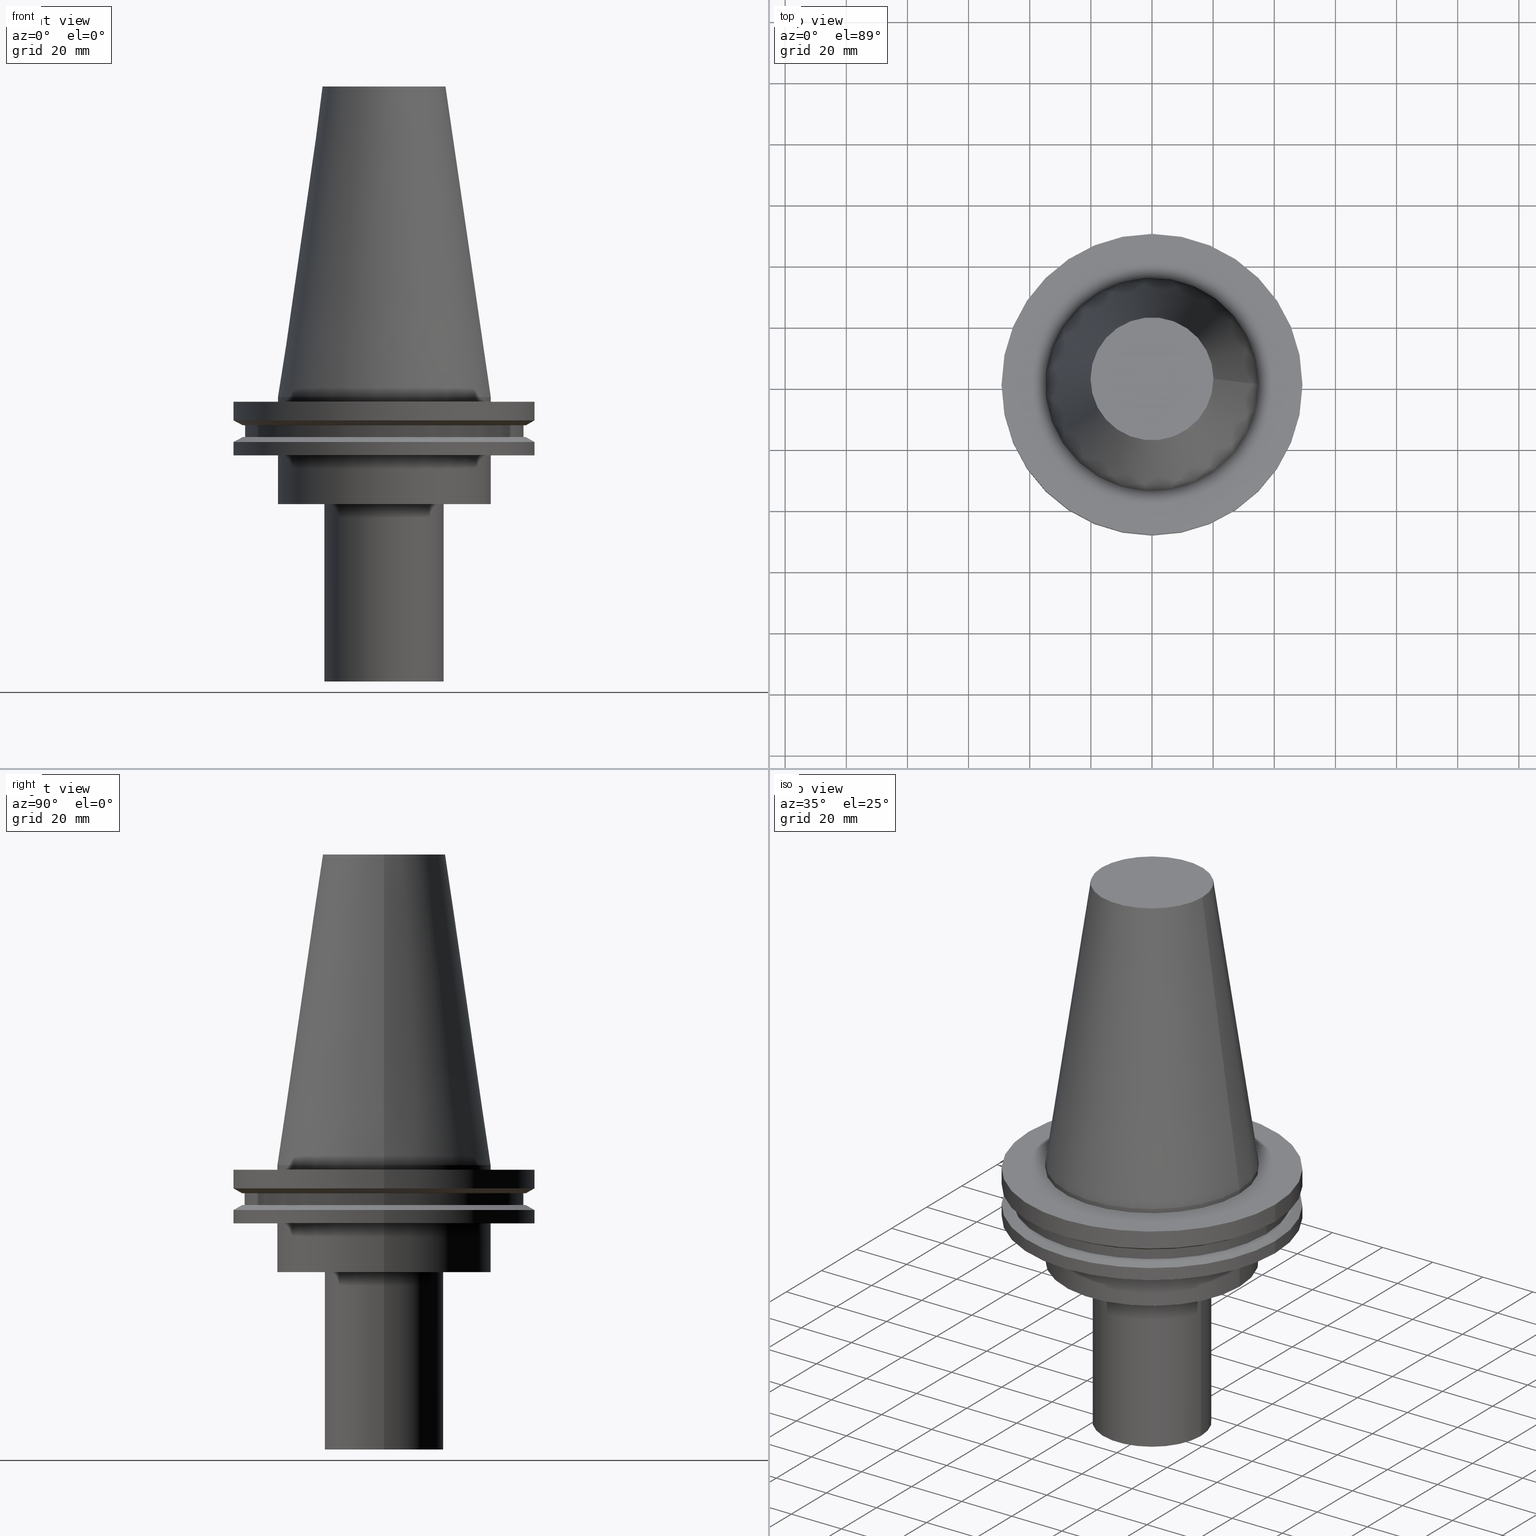
[diagram: canonical four-view strip — front | top / right | iso, engineering-drawing reading convention]
A machine part, canonical four-view strip (front | top / right | iso — engineering-drawing reading convention). The complete STEP part file that produces these views, byte-faithful:
ISO-10303-21;
HEADER;
FILE_DESCRIPTION (( 'STEP AP203' ),
    '1' );
FILE_NAME ('11.368.642.stp',
    '2022-03-09T15:20:18',
    ( '' ),
    ( '' ),
    'SwSTEP 2.0',
    'SolidWorks 2021',
    '' );
FILE_SCHEMA (( 'CONFIG_CONTROL_DESIGN' ));
ENDSEC;

DATA;
#1 = CIRCLE ( 'NONE', #202, 34.92499999999999005 ) ;
#2 = LOCAL_TIME ( 9, 20, 18.00000000000000000, #97 ) ;
#3 = ORIENTED_EDGE ( 'NONE', *, *, #93, .F. ) ;
#4 = AXIS2_PLACEMENT_3D ( 'NONE', #50, #349, #318 ) ;
#5 = SECURITY_CLASSIFICATION_LEVEL ( 'unclassified' ) ;
#6 = EDGE_LOOP ( 'NONE', ( #150 ) ) ;
#7 = EDGE_CURVE ( 'NONE', #29, #29, #290, .T. ) ;
#8 = CARTESIAN_POINT ( 'NONE',  ( 0.000000000000000000, 0.000000000000000000, 0.000000000000000000 ) ) ;
#9 = DATE_AND_TIME ( #282, #2 ) ;
#10 = EDGE_LOOP ( 'NONE', ( #303 ) ) ;
#11 = CC_DESIGN_APPROVAL ( #53, ( #28 ) ) ;
#12 = DATE_AND_TIME ( #249, #204 ) ;
#13 = DIRECTION ( 'NONE',  ( 1.000000000000000000, 0.000000000000000000, 0.000000000000000000 ) ) ;
#14 = DIRECTION ( 'NONE',  ( 1.000000000000000000, 0.000000000000000000, 0.000000000000000000 ) ) ;
#15 = EDGE_CURVE ( 'NONE', #117, #117, #210, .T. ) ;
#16 = CARTESIAN_POINT ( 'NONE',  ( 0.000000000000000000, 20.10819343178871321, 101.5999999999999943 ) ) ;
#17 = CARTESIAN_POINT ( 'NONE',  ( 0.000000000000000000, 0.000000000000000000, 101.5999999999999943 ) ) ;
#18 = DIRECTION ( 'NONE',  ( 1.000000000000000000, 0.000000000000000000, 0.000000000000000000 ) ) ;
#19 = CARTESIAN_POINT ( 'NONE',  ( 0.000000000000000000, 0.000000000000000000, 101.5999999999999943 ) ) ;
#20 = AXIS2_PLACEMENT_3D ( 'NONE', #108, #109, #76 ) ;
#21 = AXIS2_PLACEMENT_3D ( 'NONE', #16, #165, #285 ) ;
#22 = DIRECTION ( 'NONE',  ( 1.000000000000000000, 0.000000000000000000, 0.000000000000000000 ) ) ;
#23 = VERTEX_POINT ( 'NONE', #114 ) ;
#24 = CC_DESIGN_PERSON_AND_ORGANIZATION_ASSIGNMENT ( #280, #276, ( #45 ) ) ;
#25 = EDGE_LOOP ( 'NONE', ( #271 ) ) ;
#26 = FACE_OUTER_BOUND ( 'NONE', #27, .T. ) ;
#27 = EDGE_LOOP ( 'NONE', ( #364 ) ) ;
#28 = SECURITY_CLASSIFICATION ( '', '', #5 ) ;
#29 = VERTEX_POINT ( 'NONE', #394 ) ;
#30 = ORIENTED_EDGE ( 'NONE', *, *, #359, .F. ) ;
#31 = CARTESIAN_POINT ( 'NONE',  ( 0.000000000000000000, 45.64500000000000313, -13.05499999999999794 ) ) ;
#32 =( NAMED_UNIT ( * ) PLANE_ANGLE_UNIT ( ) SI_UNIT ( $, .RADIAN. ) );
#33 = ORIENTED_EDGE ( 'NONE', *, *, #316, .T. ) ;
#34 = APPLICATION_CONTEXT ( 'configuration controlled 3d designs of mechanical parts and assemblies' ) ;
#35 = AXIS2_PLACEMENT_3D ( 'NONE', #72, #191, #130 ) ;
#36 = DIRECTION ( 'NONE',  ( 0.000000000000000000, 0.000000000000000000, 1.000000000000000000 ) ) ;
#37 = AXIS2_PLACEMENT_3D ( 'NONE', #198, #47, #320 ) ;
#38 = CARTESIAN_POINT ( 'NONE',  ( 0.000000000000000000, 0.000000000000000000, -1.499999999999987566 ) ) ;
#39 = FACE_BOUND ( 'NONE', #60, .T. ) ;
#40 = CC_DESIGN_PERSON_AND_ORGANIZATION_ASSIGNMENT ( #366, #310, ( #267 ) ) ;
#41 = APPROVAL_DATE_TIME ( #246, #175 ) ;
#42 = DIRECTION ( 'NONE',  ( 0.000000000000000000, -0.000000000000000000, 1.000000000000000000 ) ) ;
#43 = COORDINATED_UNIVERSAL_TIME_OFFSET ( 6, 0, .BEHIND. ) ;
#44 = CARTESIAN_POINT ( 'NONE',  ( 0.000000000000000000, 34.92499999999999716, -35.00000000000000000 ) ) ;
#45 = PRODUCT_DEFINITION_FORMATION_WITH_SPECIFIED_SOURCE ( 'ANY', '', #267, .NOT_KNOWN. ) ;
#46 = DIRECTION ( 'NONE',  ( 0.000000000000000000, -0.000000000000000000, 1.000000000000000000 ) ) ;
#47 = DIRECTION ( 'NONE',  ( 0.000000000000000000, 0.000000000000000000, -1.000000000000000000 ) ) ;
#48 = DIRECTION ( 'NONE',  ( 1.000000000000000000, 0.000000000000000000, 0.000000000000000000 ) ) ;
#49 = AXIS2_PLACEMENT_3D ( 'NONE', #186, #369, #152 ) ;
#50 = CARTESIAN_POINT ( 'NONE',  ( 0.000000000000000000, 0.000000000000000000, 0.000000000000000000 ) ) ;
#51 = CYLINDRICAL_SURFACE ( 'NONE', #223, 34.92499999999999005 ) ;
#52 = FACE_OUTER_BOUND ( 'NONE', #87, .T. ) ;
#53 = APPROVAL ( #129, 'UNSPECIFIED' ) ;
#54 = AXIS2_PLACEMENT_3D ( 'NONE', #81, #381, #386 ) ;
#55 = ORIENTED_EDGE ( 'NONE', *, *, #15, .F. ) ;
#56 = FACE_OUTER_BOUND ( 'NONE', #336, .T. ) ;
#57 = DIRECTION ( 'NONE',  ( 1.000000000000000000, 0.000000000000000000, 0.000000000000000000 ) ) ;
#58 = EDGE_LOOP ( 'NONE', ( #33 ) ) ;
#59 = DIRECTION ( 'NONE',  ( 1.000000000000000000, 0.000000000000000000, 0.000000000000000000 ) ) ;
#60 = EDGE_LOOP ( 'NONE', ( #269 ) ) ;
#61 = CARTESIAN_POINT ( 'NONE',  ( 46.43919780457007818, 0.000000000000000000, -13.05499999999999794 ) ) ;
#62 = ORIENTED_EDGE ( 'NONE', *, *, #316, .F. ) ;
#63 = ADVANCED_FACE ( 'NONE', ( #376, #250 ), #217, .T. ) ;
#64 = APPROVAL_STATUS ( 'not_yet_approved' ) ;
#65 = DIRECTION ( 'NONE',  ( -0.000000000000000000, -0.000000000000000000, 1.000000000000000000 ) ) ;
#66 = APPROVAL ( #64, 'UNSPECIFIED' ) ;
#67 = APPROVAL_PERSON_ORGANIZATION ( #213, #53, #251 ) ;
#68 = FACE_OUTER_BOUND ( 'NONE', #233, .T. ) ;
#69 = PERSON_AND_ORGANIZATION ( #182, #275 ) ;
#70 = DIRECTION ( 'NONE',  ( 1.000000000000000000, 0.000000000000000000, 0.000000000000000000 ) ) ;
#71 = DIRECTION ( 'NONE',  ( 1.000000000000000000, 0.000000000000000000, 0.000000000000000000 ) ) ;
#72 = CARTESIAN_POINT ( 'NONE',  ( 0.000000000000000000, 0.000000000000000000, 0.000000000000000000 ) ) ;
#73 = APPROVAL_DATE_TIME ( #345, #53 ) ;
#74 = DIRECTION ( 'NONE',  ( -0.000000000000000000, -0.000000000000000000, 1.000000000000000000 ) ) ;
#75 = AXIS2_PLACEMENT_3D ( 'NONE', #136, #106, #382 ) ;
#76 = DIRECTION ( 'NONE',  ( 1.000000000000000000, 0.000000000000000000, 0.000000000000000000 ) ) ;
#77 = CARTESIAN_POINT ( 'NONE',  ( 0.000000000000000000, 0.000000000000000000, 101.5999999999999943 ) ) ;
#78 = FACE_BOUND ( 'NONE', #306, .T. ) ;
#79 = AXIS2_PLACEMENT_3D ( 'NONE', #195, #141, #377 ) ;
#80 = FACE_BOUND ( 'NONE', #25, .T. ) ;
#81 = CARTESIAN_POINT ( 'NONE',  ( 0.000000000000000000, 46.43919780457007818, -9.204999999999998295 ) ) ;
#82 = ADVANCED_FACE ( 'NONE', ( #39, #244 ), #96, .F. ) ;
#83 =( NAMED_UNIT ( * ) SI_UNIT ( $, .STERADIAN. ) SOLID_ANGLE_UNIT ( ) );
#84 = LOCAL_TIME ( 9, 20, 18.00000000000000000, #43 ) ;
#85 = CARTESIAN_POINT ( 'NONE',  ( 34.92499999999999005, 0.000000000000000000, -1.499999999999987566 ) ) ;
#86 = VERTEX_POINT ( 'NONE', #211 ) ;
#87 = EDGE_LOOP ( 'NONE', ( #92 ) ) ;
#88 = VERTEX_POINT ( 'NONE', #85 ) ;
#89 = AXIS2_PLACEMENT_3D ( 'NONE', #292, #228, #18 ) ;
#90 =( GEOMETRIC_REPRESENTATION_CONTEXT ( 3 ) GLOBAL_UNCERTAINTY_ASSIGNED_CONTEXT ( ( #259 ) ) GLOBAL_UNIT_ASSIGNED_CONTEXT ( ( #333, #32, #83 ) ) REPRESENTATION_CONTEXT ( 'NONE', 'WORKASPACE' ) );
#91 = EDGE_LOOP ( 'NONE', ( #203 ) ) ;
#92 = ORIENTED_EDGE ( 'NONE', *, *, #15, .T. ) ;
#93 = EDGE_CURVE ( 'NONE', #88, #88, #1, .T. ) ;
#94 = DESIGN_CONTEXT ( 'detailed design', #374, 'design' ) ;
#95 = DATE_TIME_ROLE ( 'classification_date' ) ;
#96 = PLANE ( 'NONE',  #319 ) ;
#97 = COORDINATED_UNIVERSAL_TIME_OFFSET ( 6, 0, .BEHIND. ) ;
#98 = ORIENTED_EDGE ( 'NONE', *, *, #105, .F. ) ;
#99 = PERSON_AND_ORGANIZATION_ROLE ( 'creator' ) ;
#100 = EDGE_LOOP ( 'NONE', ( #113 ) ) ;
#101 = CALENDAR_DATE ( 2022, 9, 3 ) ;
#102 = FACE_OUTER_BOUND ( 'NONE', #118, .T. ) ;
#103 = FACE_BOUND ( 'NONE', #208, .T. ) ;
#104 = AXIS2_PLACEMENT_3D ( 'NONE', #355, #328, #57 ) ;
#105 = EDGE_CURVE ( 'NONE', #144, #144, #139, .T. ) ;
#106 = DIRECTION ( 'NONE',  ( -0.000000000000000000, -0.000000000000000000, 1.000000000000000000 ) ) ;
#107 = PLANE ( 'NONE',  #37 ) ;
#108 = CARTESIAN_POINT ( 'NONE',  ( 0.000000000000000000, 0.000000000000000000, -9.204999999999991189 ) ) ;
#109 = DIRECTION ( 'NONE',  ( -0.000000000000000000, -0.000000000000000000, 1.000000000000000000 ) ) ;
#110 = ADVANCED_BREP_SHAPE_REPRESENTATION ( '11.368.642', ( #293, #170 ), #90 ) ;
#111 = DIRECTION ( 'NONE',  ( 1.000000000000000000, 0.000000000000000000, 0.000000000000000000 ) ) ;
#112 = CARTESIAN_POINT ( 'NONE',  ( 34.92499999999999005, 0.000000000000000000, 0.000000000000000000 ) ) ;
#113 = ORIENTED_EDGE ( 'NONE', *, *, #105, .T. ) ;
#114 = CARTESIAN_POINT ( 'NONE',  ( 19.50000000000000000, 0.000000000000000000, -35.00000000000000000 ) ) ;
#115 = ORIENTED_EDGE ( 'NONE', *, *, #194, .F. ) ;
#116 = CC_DESIGN_DATE_AND_TIME_ASSIGNMENT ( #9, #151, ( #379 ) ) ;
#117 = VERTEX_POINT ( 'NONE', #174 ) ;
#118 = EDGE_LOOP ( 'NONE', ( #98 ) ) ;
#119 = VERTEX_POINT ( 'NONE', #302 ) ;
#120 = EDGE_LOOP ( 'NONE', ( #62 ) ) ;
#121 = CIRCLE ( 'NONE', #348, 49.21499999999998920 ) ;
#122 = AXIS2_PLACEMENT_3D ( 'NONE', #31, #207, #270 ) ;
#123 = AXIS2_PLACEMENT_3D ( 'NONE', #8, #74, #343 ) ;
#124 = PLANE ( 'NONE',  #323 ) ;
#125 = FACE_BOUND ( 'NONE', #371, .T. ) ;
#126 = CC_DESIGN_SECURITY_CLASSIFICATION ( #28, ( #45 ) ) ;
#127 = PERSON_AND_ORGANIZATION ( #182, #275 ) ;
#128 = DIRECTION ( 'NONE',  ( 1.000000000000000000, 0.000000000000000000, 0.000000000000000000 ) ) ;
#129 = APPROVAL_STATUS ( 'not_yet_approved' ) ;
#130 = DIRECTION ( 'NONE',  ( 1.000000000000000000, 0.000000000000000000, 0.000000000000000000 ) ) ;
#131 = CARTESIAN_POINT ( 'NONE',  ( 0.000000000000000000, 0.000000000000000000, 101.5999999999999943 ) ) ;
#132 = ADVANCED_FACE ( 'NONE', ( #247 ), #124, .F. ) ;
#133 = DIRECTION ( 'NONE',  ( -0.000000000000000000, -0.000000000000000000, 1.000000000000000000 ) ) ;
#134 = APPROVAL_PERSON_ORGANIZATION ( #153, #66, #156 ) ;
#135 = ADVANCED_FACE ( 'NONE', ( #68, #125 ), #311, .F. ) ;
#136 = CARTESIAN_POINT ( 'NONE',  ( 0.000000000000000000, 0.000000000000000000, -14.65761014474876944 ) ) ;
#137 = DIRECTION ( 'NONE',  ( -0.000000000000000000, -0.000000000000000000, 1.000000000000000000 ) ) ;
#138 = FACE_BOUND ( 'NONE', #314, .T. ) ;
#139 = CIRCLE ( 'NONE', #49, 49.21499999999999631 ) ;
#140 = APPROVAL_PERSON_ORGANIZATION ( #69, #175, #338 ) ;
#141 = DIRECTION ( 'NONE',  ( 0.000000000000000000, 0.000000000000000000, -1.000000000000000000 ) ) ;
#142 = VERTEX_POINT ( 'NONE', #237 ) ;
#143 = ORIENTED_EDGE ( 'NONE', *, *, #163, .F. ) ;
#144 = VERTEX_POINT ( 'NONE', #335 ) ;
#145 = CC_DESIGN_PERSON_AND_ORGANIZATION_ASSIGNMENT ( #304, #187, ( #379 ) ) ;
#146 = CARTESIAN_POINT ( 'NONE',  ( 20.10819343178871321, 0.000000000000000000, 101.5999999999999801 ) ) ;
#147 = EDGE_LOOP ( 'NONE', ( #279 ) ) ;
#148 = DIRECTION ( 'NONE',  ( 1.000000000000000000, 0.000000000000000000, 0.000000000000000000 ) ) ;
#149 = EDGE_CURVE ( 'NONE', #235, #235, #307, .T. ) ;
#150 = ORIENTED_EDGE ( 'NONE', *, *, #7, .F. ) ;
#151 = DATE_TIME_ROLE ( 'creation_date' ) ;
#152 = DIRECTION ( 'NONE',  ( 1.000000000000000000, 0.000000000000000000, 0.000000000000000000 ) ) ;
#153 = PERSON_AND_ORGANIZATION ( #182, #275 ) ;
#154 = CARTESIAN_POINT ( 'NONE',  ( 0.000000000000000000, 19.50000000000000000, -93.00000000000000000 ) ) ;
#155 = ADVANCED_FACE ( 'NONE', ( #102, #161 ), #346, .T. ) ;
#156 = APPROVAL_ROLE ( '' ) ;
#157 = DIRECTION ( 'NONE',  ( -0.000000000000000000, -0.000000000000000000, 1.000000000000000000 ) ) ;
#158 = LOCAL_TIME ( 9, 20, 18.00000000000000000, #375 ) ;
#159 = CALENDAR_DATE ( 2022, 9, 3 ) ;
#160 = ORIENTED_EDGE ( 'NONE', *, *, #7, .T. ) ;
#161 = FACE_OUTER_BOUND ( 'NONE', #91, .T. ) ;
#162 = DIRECTION ( 'NONE',  ( 1.000000000000000000, 0.000000000000000000, 0.000000000000000000 ) ) ;
#163 = EDGE_CURVE ( 'NONE', #263, #263, #215, .T. ) ;
#164 = CONICAL_SURFACE ( 'NONE', #4, 34.92499999999999005, 0.1448138465474119452 ) ;
#165 = DIRECTION ( 'NONE',  ( 0.000000000000000000, 0.000000000000000000, -1.000000000000000000 ) ) ;
#166 = FACE_OUTER_BOUND ( 'NONE', #330, .T. ) ;
#167 = CARTESIAN_POINT ( 'NONE',  ( 0.000000000000000000, 0.000000000000000000, -7.602389855251287187 ) ) ;
#168 = CARTESIAN_POINT ( 'NONE',  ( 0.000000000000000000, 0.000000000000000000, -9.204999999999991189 ) ) ;
#169 = AXIS2_PLACEMENT_3D ( 'NONE', #167, #321, #200 ) ;
#170 = AXIS2_PLACEMENT_3D ( 'NONE', #313, #36, #71 ) ;
#171 = CIRCLE ( 'NONE', #169, 49.21500000000000341 ) ;
#172 = VERTEX_POINT ( 'NONE', #363 ) ;
#173 = EDGE_LOOP ( 'NONE', ( #176 ) ) ;
#174 = CARTESIAN_POINT ( 'NONE',  ( 34.92499999999999716, 0.000000000000000000, -35.00000000000000000 ) ) ;
#175 = APPROVAL ( #190, 'UNSPECIFIED' ) ;
#176 = ORIENTED_EDGE ( 'NONE', *, *, #227, .F. ) ;
#177 = CARTESIAN_POINT ( 'NONE',  ( 49.21500000000000341, 0.000000000000000000, -7.602389855251287187 ) ) ;
#178 = ORIENTED_EDGE ( 'NONE', *, *, #337, .T. ) ;
#179 = CC_DESIGN_APPROVAL ( #66, ( #45 ) ) ;
#180 = DIRECTION ( 'NONE',  ( -0.000000000000000000, -0.000000000000000000, 1.000000000000000000 ) ) ;
#181 = ORIENTED_EDGE ( 'NONE', *, *, #287, .T. ) ;
#182 = PERSON ( 'UNSPECIFIED', 'UNSPECIFIED', 'UNSPECIFIED', ('UNSPECIFIED'), ('UNSPECIFIED'), ('UNSPECIFIED') ) ;
#183 = SHAPE_DEFINITION_REPRESENTATION ( #368, #110 ) ;
#184 = DIRECTION ( 'NONE',  ( -0.000000000000000000, -0.000000000000000000, 1.000000000000000000 ) ) ;
#185 = CIRCLE ( 'NONE', #324, 20.10819343178871321 ) ;
#186 = CARTESIAN_POINT ( 'NONE',  ( 0.000000000000000000, 0.000000000000000000, -1.499999999999987566 ) ) ;
#187 = PERSON_AND_ORGANIZATION_ROLE ( 'creator' ) ;
#188 = DIRECTION ( 'NONE',  ( 0.000000000000000000, -0.000000000000000000, 1.000000000000000000 ) ) ;
#189 = EDGE_CURVE ( 'NONE', #300, #300, #121, .T. ) ;
#190 = APPROVAL_STATUS ( 'not_yet_approved' ) ;
#191 = DIRECTION ( 'NONE',  ( -0.000000000000000000, -0.000000000000000000, 1.000000000000000000 ) ) ;
#192 = LOCAL_TIME ( 9, 20, 18.00000000000000000, #243 ) ;
#193 = ORIENTED_EDGE ( 'NONE', *, *, #287, .F. ) ;
#194 = EDGE_CURVE ( 'NONE', #294, #294, #171, .T. ) ;
#195 = CARTESIAN_POINT ( 'NONE',  ( 0.000000000000000000, 0.000000000000000000, -14.65761014474876944 ) ) ;
#196 = PLANE ( 'NONE',  #21 ) ;
#197 = AXIS2_PLACEMENT_3D ( 'NONE', #131, #253, #344 ) ;
#198 = CARTESIAN_POINT ( 'NONE',  ( 0.000000000000000000, 49.21499999999999631, -1.499999999999992895 ) ) ;
#199 = FACE_OUTER_BOUND ( 'NONE', #327, .T. ) ;
#200 = DIRECTION ( 'NONE',  ( 1.000000000000000000, 0.000000000000000000, 0.000000000000000000 ) ) ;
#201 = FACE_BOUND ( 'NONE', #120, .T. ) ;
#202 = AXIS2_PLACEMENT_3D ( 'NONE', #38, #283, #373 ) ;
#203 = ORIENTED_EDGE ( 'NONE', *, *, #194, .T. ) ;
#204 = LOCAL_TIME ( 9, 20, 18.00000000000000000, #218 ) ;
#205 = ADVANCED_FACE ( 'NONE', ( #322, #52 ), #289, .T. ) ;
#206 = FACE_OUTER_BOUND ( 'NONE', #362, .T. ) ;
#207 = DIRECTION ( 'NONE',  ( 0.000000000000000000, 0.000000000000000000, -1.000000000000000000 ) ) ;
#208 = EDGE_LOOP ( 'NONE', ( #3 ) ) ;
#209 = VERTEX_POINT ( 'NONE', #146 ) ;
#210 = CIRCLE ( 'NONE', #254, 34.92499999999999716 ) ;
#211 = CARTESIAN_POINT ( 'NONE',  ( 49.21499999999998920, 0.000000000000000000, -14.65761014474876944 ) ) ;
#212 = EDGE_LOOP ( 'NONE', ( #143 ) ) ;
#213 = PERSON_AND_ORGANIZATION ( #182, #275 ) ;
#214 = DIRECTION ( 'NONE',  ( 1.000000000000000000, 0.000000000000000000, 0.000000000000000000 ) ) ;
#215 = CIRCLE ( 'NONE', #35, 34.92499999999999005 ) ;
#216 = ADVANCED_FACE ( 'NONE', ( #230, #138 ), #225, .T. ) ;
#217 = CYLINDRICAL_SURFACE ( 'NONE', #123, 19.50000000000000000 ) ;
#218 = COORDINATED_UNIVERSAL_TIME_OFFSET ( 6, 0, .BEHIND. ) ;
#219 = CARTESIAN_POINT ( 'NONE',  ( 0.000000000000000000, 0.000000000000000000, -19.04999999999999716 ) ) ;
#220 = APPLICATION_PROTOCOL_DEFINITION ( 'international standard', 'config_control_design', 1994, #34 ) ;
#221 = CARTESIAN_POINT ( 'NONE',  ( 0.000000000000000000, 0.000000000000000000, -93.00000000000000000 ) ) ;
#222 = ADVANCED_FACE ( 'NONE', ( #199 ), #196, .F. ) ;
#223 = AXIS2_PLACEMENT_3D ( 'NONE', #17, #256, #288 ) ;
#224 = PLANE ( 'NONE',  #54 ) ;
#225 = CONICAL_SURFACE ( 'NONE', #260, 46.43919780457007818, 1.047197551196575205 ) ;
#226 = DIRECTION ( 'NONE',  ( 1.000000000000000000, 0.000000000000000000, 0.000000000000000000 ) ) ;
#227 = EDGE_CURVE ( 'NONE', #23, #23, #365, .T. ) ;
#228 = DIRECTION ( 'NONE',  ( -0.000000000000000000, -0.000000000000000000, 1.000000000000000000 ) ) ;
#229 = CIRCLE ( 'NONE', #75, 49.21499999999998920 ) ;
#230 = FACE_OUTER_BOUND ( 'NONE', #334, .T. ) ;
#231 = FACE_OUTER_BOUND ( 'NONE', #147, .T. ) ;
#232 = CC_DESIGN_PERSON_AND_ORGANIZATION_ASSIGNMENT ( #342, #99, ( #45 ) ) ;
#233 = EDGE_LOOP ( 'NONE', ( #240 ) ) ;
#234 = CC_DESIGN_APPROVAL ( #175, ( #379 ) ) ;
#235 = VERTEX_POINT ( 'NONE', #391 ) ;
#236 = EDGE_LOOP ( 'NONE', ( #55 ) ) ;
#237 = CARTESIAN_POINT ( 'NONE',  ( 45.64500000000000313, 0.000000000000000000, -9.204999999999991189 ) ) ;
#238 = ADVANCED_FACE ( 'NONE', ( #354, #353 ), #164, .T. ) ;
#239 = CARTESIAN_POINT ( 'NONE',  ( 0.000000000000000000, 0.000000000000000000, 101.5999999999999943 ) ) ;
#240 = ORIENTED_EDGE ( 'NONE', *, *, #189, .F. ) ;
#241 = AXIS2_PLACEMENT_3D ( 'NONE', #325, #180, #59 ) ;
#242 = AXIS2_PLACEMENT_3D ( 'NONE', #77, #352, #48 ) ;
#243 = COORDINATED_UNIVERSAL_TIME_OFFSET ( 6, 0, .BEHIND. ) ;
#244 = FACE_OUTER_BOUND ( 'NONE', #236, .T. ) ;
#245 = ADVANCED_FACE ( 'NONE', ( #258, #317 ), #383, .T. ) ;
#246 = DATE_AND_TIME ( #159, #84 ) ;
#247 = FACE_OUTER_BOUND ( 'NONE', #6, .T. ) ;
#248 = CONICAL_SURFACE ( 'NONE', #79, 49.21499999999998920, 1.047197551196554333 ) ;
#249 = CALENDAR_DATE ( 2022, 9, 3 ) ;
#250 = FACE_OUTER_BOUND ( 'NONE', #332, .T. ) ;
#251 = APPROVAL_ROLE ( '' ) ;
#252 = CARTESIAN_POINT ( 'NONE',  ( 0.000000000000000000, 0.000000000000000000, -19.04999999999999716 ) ) ;
#253 = DIRECTION ( 'NONE',  ( -0.000000000000000000, -0.000000000000000000, 1.000000000000000000 ) ) ;
#254 = AXIS2_PLACEMENT_3D ( 'NONE', #339, #184, #281 ) ;
#255 = FACE_OUTER_BOUND ( 'NONE', #273, .T. ) ;
#256 = DIRECTION ( 'NONE',  ( -0.000000000000000000, -0.000000000000000000, 1.000000000000000000 ) ) ;
#257 = ADVANCED_FACE ( 'NONE', ( #255, #80 ), #224, .F. ) ;
#258 = FACE_OUTER_BOUND ( 'NONE', #340, .T. ) ;
#259 = UNCERTAINTY_MEASURE_WITH_UNIT (LENGTH_MEASURE( 1.000000000000000082E-05 ), #333, 'distance_accuracy_value', 'NONE');
#260 = AXIS2_PLACEMENT_3D ( 'NONE', #168, #133, #226 ) ;
#261 = DIRECTION ( 'NONE',  ( -0.000000000000000000, -0.000000000000000000, 1.000000000000000000 ) ) ;
#262 = ADVANCED_FACE ( 'NONE', ( #286, #166 ), #51, .T. ) ;
#263 = VERTEX_POINT ( 'NONE', #112 ) ;
#264 = EDGE_LOOP ( 'NONE', ( #296 ) ) ;
#265 = CYLINDRICAL_SURFACE ( 'NONE', #357, 49.21499999999998920 ) ;
#266 = CLOSED_SHELL ( 'NONE', ( #238, #222, #82, #205, #135, #329, #297, #356, #245, #257, #216, #155, #312, #262, #63, #132 ) ) ;
#267 = PRODUCT ( '11.368.642', '11.368.642', '', ( #272 ) ) ;
#268 = VERTEX_POINT ( 'NONE', #61 ) ;
#269 = ORIENTED_EDGE ( 'NONE', *, *, #227, .T. ) ;
#270 = DIRECTION ( 'NONE',  ( -1.000000000000000000, 0.000000000000000000, -0.000000000000000000 ) ) ;
#271 = ORIENTED_EDGE ( 'NONE', *, *, #395, .T. ) ;
#272 = MECHANICAL_CONTEXT ( 'NONE', #34, 'mechanical' ) ;
#273 = EDGE_LOOP ( 'NONE', ( #193 ) ) ;
#274 = AXIS2_PLACEMENT_3D ( 'NONE', #219, #157, #128 ) ;
#275 = ORGANIZATION ( 'UNSPECIFIED', 'UNSPECIFIED', '' ) ;
#276 = PERSON_AND_ORGANIZATION_ROLE ( 'design_supplier' ) ;
#277 = PRODUCT_RELATED_PRODUCT_CATEGORY ( 'detail', '', ( #267 ) ) ;
#278 = APPLICATION_PROTOCOL_DEFINITION ( 'international standard', 'config_control_design', 1994, #374 ) ;
#279 = ORIENTED_EDGE ( 'NONE', *, *, #305, .T. ) ;
#280 = PERSON_AND_ORGANIZATION ( #182, #275 ) ;
#281 = DIRECTION ( 'NONE',  ( 1.000000000000000000, 0.000000000000000000, 0.000000000000000000 ) ) ;
#282 = CALENDAR_DATE ( 2022, 9, 3 ) ;
#283 = DIRECTION ( 'NONE',  ( -0.000000000000000000, -0.000000000000000000, 1.000000000000000000 ) ) ;
#284 = ORIENTED_EDGE ( 'NONE', *, *, #337, .F. ) ;
#285 = DIRECTION ( 'NONE',  ( -1.000000000000000000, 0.000000000000000000, -0.000000000000000000 ) ) ;
#286 = FACE_OUTER_BOUND ( 'NONE', #212, .T. ) ;
#287 = EDGE_CURVE ( 'NONE', #119, #119, #384, .T. ) ;
#288 = DIRECTION ( 'NONE',  ( 1.000000000000000000, 0.000000000000000000, 0.000000000000000000 ) ) ;
#289 = CYLINDRICAL_SURFACE ( 'NONE', #341, 34.92499999999999716 ) ;
#290 = CIRCLE ( 'NONE', #326, 19.50000000000000000 ) ;
#291 = CIRCLE ( 'NONE', #385, 45.64500000000000313 ) ;
#292 = CARTESIAN_POINT ( 'NONE',  ( 0.000000000000000000, 0.000000000000000000, -35.00000000000000000 ) ) ;
#293 = MANIFOLD_SOLID_BREP ( 'CKB', #266 ) ;
#294 = VERTEX_POINT ( 'NONE', #177 ) ;
#295 = CARTESIAN_POINT ( 'NONE',  ( 0.000000000000000000, 0.000000000000000000, 101.5999999999999801 ) ) ;
#296 = ORIENTED_EDGE ( 'NONE', *, *, #163, .T. ) ;
#297 = ADVANCED_FACE ( 'NONE', ( #78, #231 ), #248, .T. ) ;
#298 = CARTESIAN_POINT ( 'NONE',  ( 0.000000000000000000, 0.000000000000000000, -13.05499999999999794 ) ) ;
#299 = ORIENTED_EDGE ( 'NONE', *, *, #359, .T. ) ;
#300 = VERTEX_POINT ( 'NONE', #388 ) ;
#301 = EDGE_LOOP ( 'NONE', ( #284 ) ) ;
#302 = CARTESIAN_POINT ( 'NONE',  ( 46.43919780457007818, 0.000000000000000000, -9.204999999999991189 ) ) ;
#303 = ORIENTED_EDGE ( 'NONE', *, *, #149, .F. ) ;
#304 = PERSON_AND_ORGANIZATION ( #182, #275 ) ;
#305 = EDGE_CURVE ( 'NONE', #86, #86, #229, .T. ) ;
#306 = EDGE_LOOP ( 'NONE', ( #30 ) ) ;
#307 = CIRCLE ( 'NONE', #274, 34.92499999999999716 ) ;
#308 = PERSON_AND_ORGANIZATION_ROLE ( 'classification_officer' ) ;
#309 = ORIENTED_EDGE ( 'NONE', *, *, #93, .T. ) ;
#310 = PERSON_AND_ORGANIZATION_ROLE ( 'design_owner' ) ;
#311 = PLANE ( 'NONE',  #378 ) ;
#312 = ADVANCED_FACE ( 'NONE', ( #103, #351 ), #107, .F. ) ;
#313 = CARTESIAN_POINT ( 'NONE',  ( 0.000000000000000000, 0.000000000000000000, 0.000000000000000000 ) ) ;
#314 = EDGE_LOOP ( 'NONE', ( #181 ) ) ;
#315 = CARTESIAN_POINT ( 'NONE',  ( 0.000000000000000000, 49.21499999999998920, -19.04999999999999716 ) ) ;
#316 = EDGE_CURVE ( 'NONE', #172, #172, #291, .T. ) ;
#317 = FACE_OUTER_BOUND ( 'NONE', #58, .T. ) ;
#318 = DIRECTION ( 'NONE',  ( -1.000000000000000000, 0.000000000000000000, 0.000000000000000000 ) ) ;
#319 = AXIS2_PLACEMENT_3D ( 'NONE', #44, #46, #14 ) ;
#320 = DIRECTION ( 'NONE',  ( -1.000000000000000000, 0.000000000000000000, -0.000000000000000000 ) ) ;
#321 = DIRECTION ( 'NONE',  ( -0.000000000000000000, -0.000000000000000000, 1.000000000000000000 ) ) ;
#322 = FACE_OUTER_BOUND ( 'NONE', #10, .T. ) ;
#323 = AXIS2_PLACEMENT_3D ( 'NONE', #154, #188, #214 ) ;
#324 = AXIS2_PLACEMENT_3D ( 'NONE', #295, #387, #358 ) ;
#325 = CARTESIAN_POINT ( 'NONE',  ( 0.000000000000000000, 0.000000000000000000, -9.204999999999991189 ) ) ;
#326 = AXIS2_PLACEMENT_3D ( 'NONE', #221, #65, #70 ) ;
#327 = EDGE_LOOP ( 'NONE', ( #178 ) ) ;
#328 = DIRECTION ( 'NONE',  ( -0.000000000000000000, -0.000000000000000000, 1.000000000000000000 ) ) ;
#329 = ADVANCED_FACE ( 'NONE', ( #56, #26 ), #265, .T. ) ;
#330 = EDGE_LOOP ( 'NONE', ( #309 ) ) ;
#331 = DIRECTION ( 'NONE',  ( -0.000000000000000000, -0.000000000000000000, 1.000000000000000000 ) ) ;
#332 = EDGE_LOOP ( 'NONE', ( #160 ) ) ;
#333 =( LENGTH_UNIT ( ) NAMED_UNIT ( * ) SI_UNIT ( .MILLI., .METRE. ) );
#334 = EDGE_LOOP ( 'NONE', ( #115 ) ) ;
#335 = CARTESIAN_POINT ( 'NONE',  ( 49.21499999999999631, 0.000000000000000000, -1.499999999999987566 ) ) ;
#336 = EDGE_LOOP ( 'NONE', ( #361 ) ) ;
#337 = EDGE_CURVE ( 'NONE', #209, #209, #185, .T. ) ;
#338 = APPROVAL_ROLE ( '' ) ;
#339 = CARTESIAN_POINT ( 'NONE',  ( 0.000000000000000000, 0.000000000000000000, -35.00000000000000000 ) ) ;
#340 = EDGE_LOOP ( 'NONE', ( #389 ) ) ;
#341 = AXIS2_PLACEMENT_3D ( 'NONE', #19, #137, #162 ) ;
#342 = PERSON_AND_ORGANIZATION ( #182, #275 ) ;
#343 = DIRECTION ( 'NONE',  ( 1.000000000000000000, 0.000000000000000000, 0.000000000000000000 ) ) ;
#344 = DIRECTION ( 'NONE',  ( 1.000000000000000000, 0.000000000000000000, 0.000000000000000000 ) ) ;
#345 = DATE_AND_TIME ( #101, #158 ) ;
#346 = CYLINDRICAL_SURFACE ( 'NONE', #197, 49.21499999999999631 ) ;
#347 = CIRCLE ( 'NONE', #104, 46.43919780457007818 ) ;
#348 = AXIS2_PLACEMENT_3D ( 'NONE', #252, #261, #22 ) ;
#349 = DIRECTION ( 'NONE',  ( 0.000000000000000000, 0.000000000000000000, -1.000000000000000000 ) ) ;
#350 = CC_DESIGN_DATE_AND_TIME_ASSIGNMENT ( #12, #95, ( #28 ) ) ;
#351 = FACE_OUTER_BOUND ( 'NONE', #100, .T. ) ;
#352 = DIRECTION ( 'NONE',  ( -0.000000000000000000, -0.000000000000000000, 1.000000000000000000 ) ) ;
#353 = FACE_OUTER_BOUND ( 'NONE', #264, .T. ) ;
#354 = FACE_BOUND ( 'NONE', #301, .T. ) ;
#355 = CARTESIAN_POINT ( 'NONE',  ( 0.000000000000000000, 0.000000000000000000, -13.05499999999999794 ) ) ;
#356 = ADVANCED_FACE ( 'NONE', ( #201, #206 ), #392, .F. ) ;
#357 = AXIS2_PLACEMENT_3D ( 'NONE', #239, #360, #148 ) ;
#358 = DIRECTION ( 'NONE',  ( 1.000000000000000000, 0.000000000000000000, 0.000000000000000000 ) ) ;
#359 = EDGE_CURVE ( 'NONE', #268, #268, #347, .T. ) ;
#360 = DIRECTION ( 'NONE',  ( -0.000000000000000000, -0.000000000000000000, 1.000000000000000000 ) ) ;
#361 = ORIENTED_EDGE ( 'NONE', *, *, #305, .F. ) ;
#362 = EDGE_LOOP ( 'NONE', ( #299 ) ) ;
#363 = CARTESIAN_POINT ( 'NONE',  ( 45.64500000000000313, 0.000000000000000000, -13.05499999999999794 ) ) ;
#364 = ORIENTED_EDGE ( 'NONE', *, *, #189, .T. ) ;
#365 = CIRCLE ( 'NONE', #89, 19.50000000000000000 ) ;
#366 = PERSON_AND_ORGANIZATION ( #182, #275 ) ;
#367 = APPROVAL_DATE_TIME ( #372, #66 ) ;
#368 = PRODUCT_DEFINITION_SHAPE ( 'NONE', 'NONE',  #379 ) ;
#369 = DIRECTION ( 'NONE',  ( -0.000000000000000000, -0.000000000000000000, 1.000000000000000000 ) ) ;
#370 = CALENDAR_DATE ( 2022, 9, 3 ) ;
#371 = EDGE_LOOP ( 'NONE', ( #393 ) ) ;
#372 = DATE_AND_TIME ( #370, #192 ) ;
#373 = DIRECTION ( 'NONE',  ( 1.000000000000000000, 0.000000000000000000, 0.000000000000000000 ) ) ;
#374 = APPLICATION_CONTEXT ( 'configuration controlled 3d designs of mechanical parts and assemblies' ) ;
#375 = COORDINATED_UNIVERSAL_TIME_OFFSET ( 6, 0, .BEHIND. ) ;
#376 = FACE_OUTER_BOUND ( 'NONE', #173, .T. ) ;
#377 = DIRECTION ( 'NONE',  ( -1.000000000000000000, 0.000000000000000000, 0.000000000000000000 ) ) ;
#378 = AXIS2_PLACEMENT_3D ( 'NONE', #315, #42, #13 ) ;
#379 = PRODUCT_DEFINITION ( 'UNKNOWN', '', #45, #94 ) ;
#380 = CIRCLE ( 'NONE', #241, 45.64500000000000313 ) ;
#381 = DIRECTION ( 'NONE',  ( 0.000000000000000000, -0.000000000000000000, 1.000000000000000000 ) ) ;
#382 = DIRECTION ( 'NONE',  ( 1.000000000000000000, 0.000000000000000000, 0.000000000000000000 ) ) ;
#383 = CYLINDRICAL_SURFACE ( 'NONE', #242, 45.64500000000000313 ) ;
#384 = CIRCLE ( 'NONE', #20, 46.43919780457007818 ) ;
#385 = AXIS2_PLACEMENT_3D ( 'NONE', #298, #331, #111 ) ;
#386 = DIRECTION ( 'NONE',  ( 1.000000000000000000, 0.000000000000000000, 0.000000000000000000 ) ) ;
#387 = DIRECTION ( 'NONE',  ( -0.000000000000000000, -0.000000000000000000, 1.000000000000000000 ) ) ;
#388 = CARTESIAN_POINT ( 'NONE',  ( 49.21499999999998920, 0.000000000000000000, -19.04999999999999716 ) ) ;
#389 = ORIENTED_EDGE ( 'NONE', *, *, #395, .F. ) ;
#390 = CC_DESIGN_PERSON_AND_ORGANIZATION_ASSIGNMENT ( #127, #308, ( #28 ) ) ;
#391 = CARTESIAN_POINT ( 'NONE',  ( 34.92499999999999716, 0.000000000000000000, -19.04999999999999716 ) ) ;
#392 = PLANE ( 'NONE',  #122 ) ;
#393 = ORIENTED_EDGE ( 'NONE', *, *, #149, .T. ) ;
#394 = CARTESIAN_POINT ( 'NONE',  ( 19.50000000000000000, 0.000000000000000000, -93.00000000000000000 ) ) ;
#395 = EDGE_CURVE ( 'NONE', #142, #142, #380, .T. ) ;
ENDSEC;
END-ISO-10303-21;
